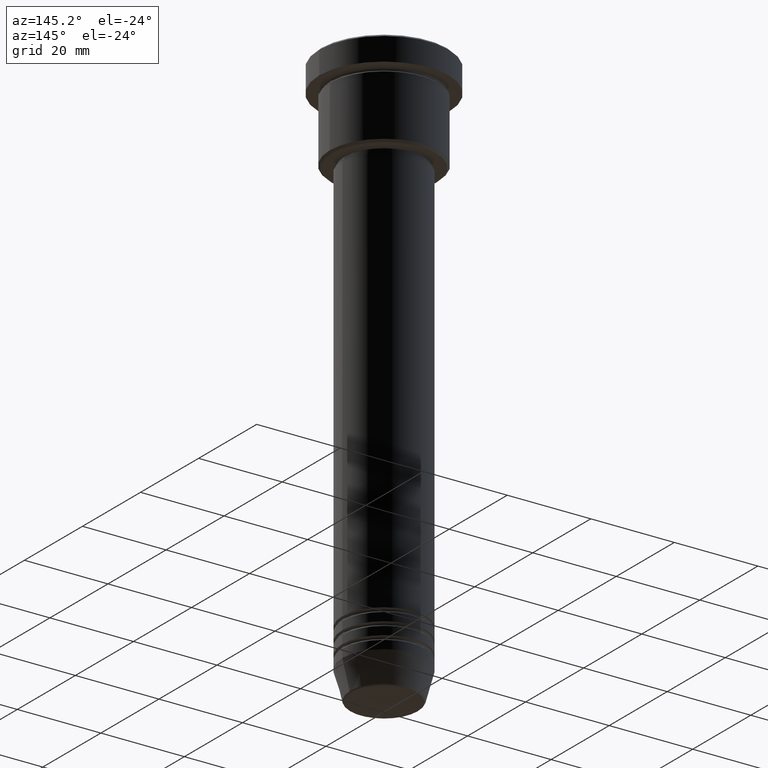
[diagram: clean part render]
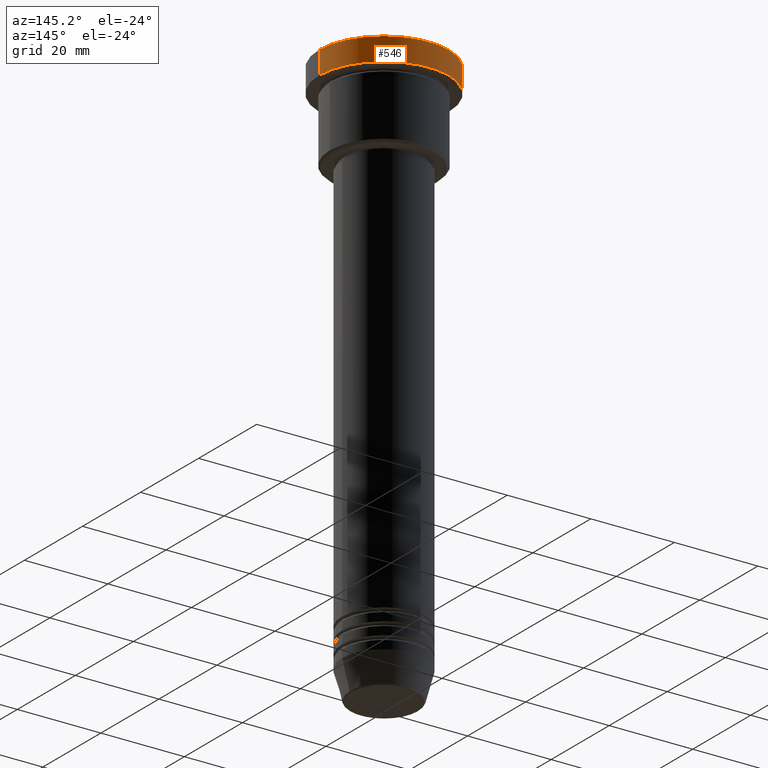
[diagram: same view with one face highlighted and labeled with its STEP entity id]
A machine part, auxiliary view. The second image highlights one B-rep face of the part: STEP entity #546.
In plain terms, the highlighted cylindrical surface (partial cylindrical patch) has radius 15.5 mm, axis along (-0, -0, 1).
Its self-contained STEP definition (entity closure, byte-faithful):
#22 = DIRECTION ( 'NONE',  ( 1.000000000000000000, 0.000000000000000000, 0.000000000000000000 ) ) ;
#36 = EDGE_CURVE ( 'NONE', #638, #434, #1001, .T. ) ;
#79 = DIRECTION ( 'NONE',  ( -0.000000000000000000, -0.000000000000000000, 1.000000000000000000 ) ) ;
#110 = AXIS2_PLACEMENT_3D ( 'NONE', #931, #126, #22 ) ;
#126 = DIRECTION ( 'NONE',  ( 0.000000000000000000, 0.000000000000000000, -1.000000000000000000 ) ) ;
#193 = ORIENTED_EDGE ( 'NONE', *, *, #992, .T. ) ;
#331 = FACE_OUTER_BOUND ( 'NONE', #987, .T. ) ;
#351 = VERTEX_POINT ( 'NONE', #903 ) ;
#419 = ORIENTED_EDGE ( 'NONE', *, *, #769, .F. ) ;
#434 = VERTEX_POINT ( 'NONE', #656 ) ;
#453 = ORIENTED_EDGE ( 'NONE', *, *, #851, .T. ) ;
#484 = DIRECTION ( 'NONE',  ( -0.000000000000000000, -0.000000000000000000, 1.000000000000000000 ) ) ;
#509 = CYLINDRICAL_SURFACE ( 'NONE', #1035, 15.50000000000000000 ) ;
#523 = DIRECTION ( 'NONE',  ( -0.000000000000000000, -0.000000000000000000, 1.000000000000000000 ) ) ;
#524 = CIRCLE ( 'NONE', #921, 15.50000000000000000 ) ;
#546 = ADVANCED_FACE ( 'NONE', ( #331 ), #509, .T. ) ;
#557 = CARTESIAN_POINT ( 'NONE',  ( -15.50000000000000000, 1.898202538678397557E-15, 0.000000000000000000 ) ) ;
#574 = LINE ( 'NONE', #557, #842 ) ;
#588 = DIRECTION ( 'NONE',  ( -0.000000000000000000, -0.000000000000000000, 1.000000000000000000 ) ) ;
#632 = LINE ( 'NONE', #705, #858 ) ;
#638 = VERTEX_POINT ( 'NONE', #1144 ) ;
#656 = CARTESIAN_POINT ( 'NONE',  ( 15.50000000000000000, 0.000000000000000000, -0.5000000000000264233 ) ) ;
#702 = CARTESIAN_POINT ( 'NONE',  ( 0.000000000000000000, 0.000000000000000000, -5.999999999999995559 ) ) ;
#705 = CARTESIAN_POINT ( 'NONE',  ( 15.50000000000000000, 0.000000000000000000, 0.000000000000000000 ) ) ;
#756 = VERTEX_POINT ( 'NONE', #1086 ) ;
#759 = DIRECTION ( 'NONE',  ( 1.000000000000000000, 0.000000000000000000, 0.000000000000000000 ) ) ;
#769 = EDGE_CURVE ( 'NONE', #351, #434, #632, .T. ) ;
#836 = DIRECTION ( 'NONE',  ( 1.000000000000000000, 0.000000000000000000, 0.000000000000000000 ) ) ;
#842 = VECTOR ( 'NONE', #484, 1000.000000000000000 ) ;
#851 = EDGE_CURVE ( 'NONE', #351, #756, #524, .T. ) ;
#858 = VECTOR ( 'NONE', #523, 1000.000000000000000 ) ;
#864 = CARTESIAN_POINT ( 'NONE',  ( 0.000000000000000000, 0.000000000000000000, 0.000000000000000000 ) ) ;
#903 = CARTESIAN_POINT ( 'NONE',  ( 15.50000000000000000, 0.000000000000000000, -5.999999999999995559 ) ) ;
#921 = AXIS2_PLACEMENT_3D ( 'NONE', #702, #79, #836 ) ;
#931 = CARTESIAN_POINT ( 'NONE',  ( 0.000000000000000000, 0.000000000000000000, -0.5000000000000264233 ) ) ;
#947 = ORIENTED_EDGE ( 'NONE', *, *, #36, .T. ) ;
#987 = EDGE_LOOP ( 'NONE', ( #453, #193, #947, #419 ) ) ;
#992 = EDGE_CURVE ( 'NONE', #756, #638, #574, .T. ) ;
#1001 = CIRCLE ( 'NONE', #110, 15.50000000000000000 ) ;
#1035 = AXIS2_PLACEMENT_3D ( 'NONE', #864, #588, #759 ) ;
#1086 = CARTESIAN_POINT ( 'NONE',  ( -15.50000000000000000, 1.898202538678397557E-15, -5.999999999999995559 ) ) ;
#1144 = CARTESIAN_POINT ( 'NONE',  ( -15.50000000000000000, 1.898202538678397557E-15, -0.5000000000000264233 ) ) ;